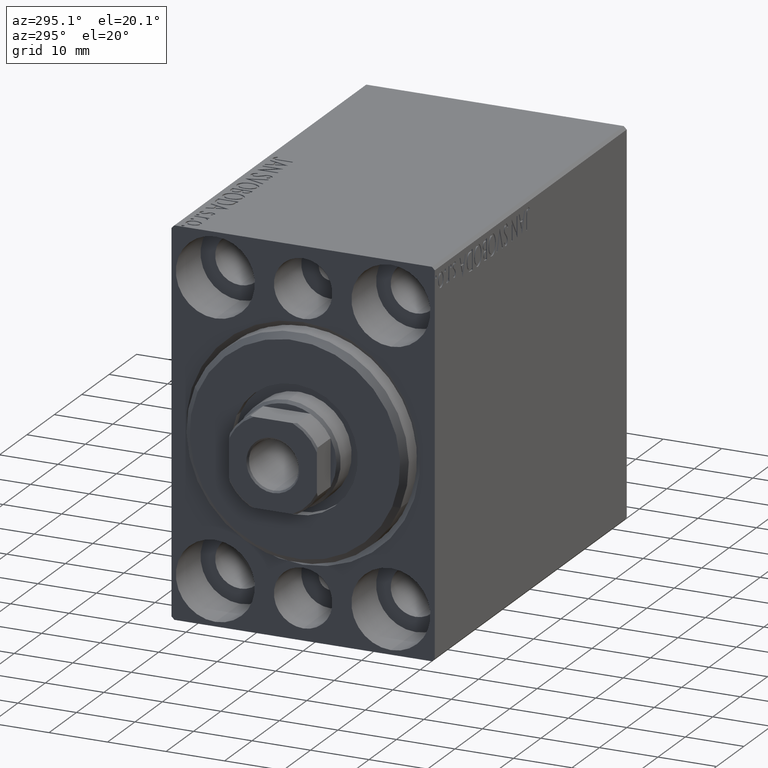
[diagram: clean part render]
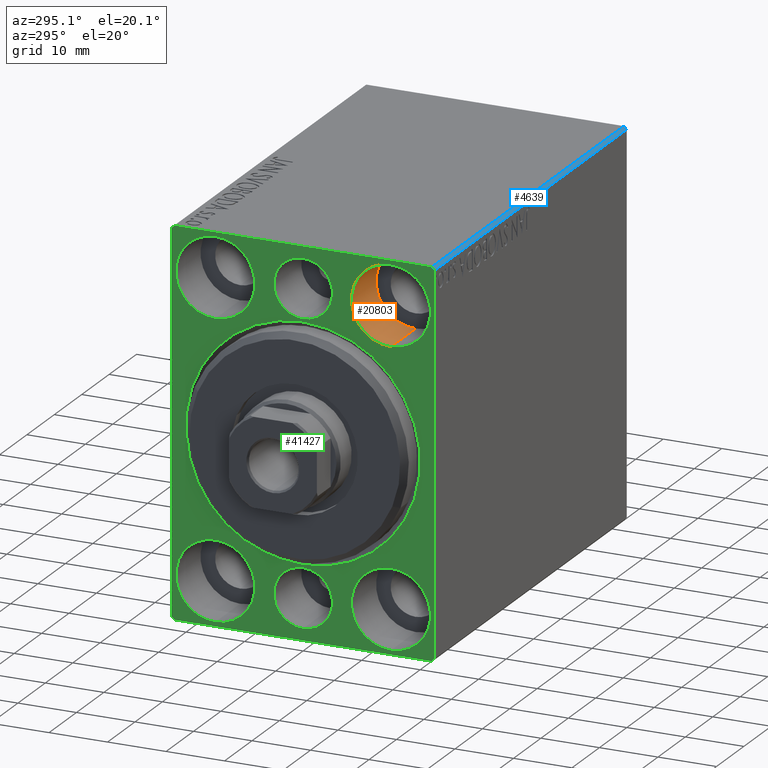
[diagram: same view with three faces highlighted in distinct colors, each labeled with its STEP entity id]
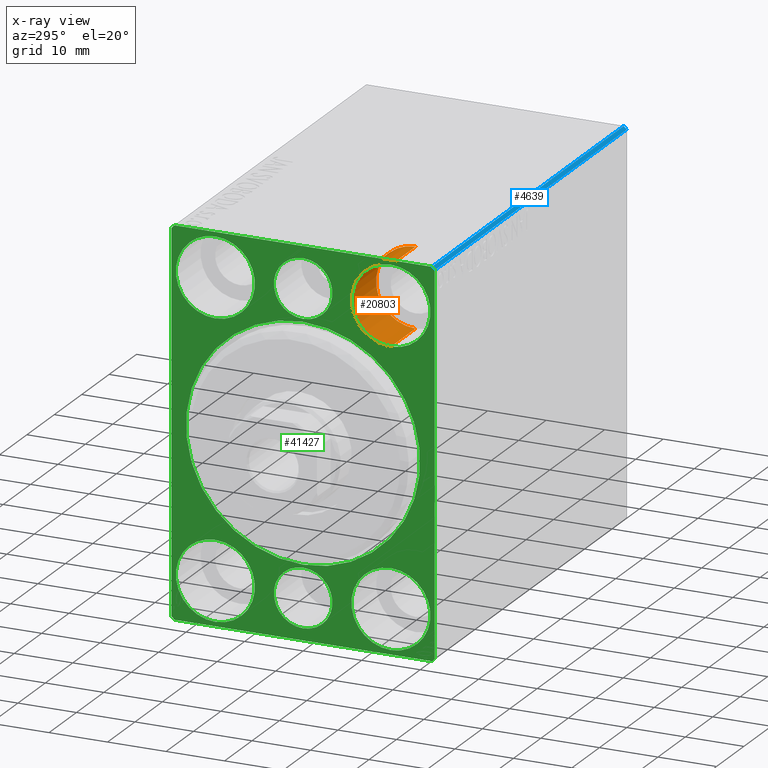
[diagram: x-ray of the same camera — body ghosted, the three highlighted faces saturated]
A machine part, auxiliary view with three faces highlighted in distinct colors.
The next image is the same camera in x-ray (body ghosted, the three faces saturated) — at least one of them is partly hidden behind the body in this view.
Their STEP definitions:

[orange] entity #20803 — the highlighted cylindrical surface (partial cylindrical patch) has radius 6.75 mm, axis along (-1, -0, -0).
#4675 = EDGE_CURVE ( 'NONE', #6647, #34797, #6281, .T. ) ;
#4719 = CARTESIAN_POINT ( 'NONE',  ( 9.000000000000000000, -14.99999999999999645, 25.00000000000000000 ) ) ;
#5056 = ORIENTED_EDGE ( 'NONE', *, *, #20488, .T. ) ;
#6268 = CARTESIAN_POINT ( 'NONE',  ( 0.000000000000000000, -14.99999999999999645, 31.75000000000000000 ) ) ;
#6281 = LINE ( 'NONE', #32587, #16364 ) ;
#6647 = VERTEX_POINT ( 'NONE', #42208 ) ;
#11013 = CIRCLE ( 'NONE', #38542, 6.749999999999999112 ) ;
#13075 = DIRECTION ( 'NONE',  ( -1.000000000000000000, -0.000000000000000000, -0.000000000000000000 ) ) ;
#14286 = ORIENTED_EDGE ( 'NONE', *, *, #26441, .F. ) ;
#15300 = VERTEX_POINT ( 'NONE', #6268 ) ;
#16068 = AXIS2_PLACEMENT_3D ( 'NONE', #36674, #43746, #26949 ) ;
#16216 = DIRECTION ( 'NONE',  ( -1.000000000000000000, -0.000000000000000000, -0.000000000000000000 ) ) ;
#16364 = VECTOR ( 'NONE', #16216, 1000.000000000000000 ) ;
#16936 = ORIENTED_EDGE ( 'NONE', *, *, #19176, .T. ) ;
#18856 = VERTEX_POINT ( 'NONE', #27780 ) ;
#19176 = EDGE_CURVE ( 'NONE', #18856, #15300, #43365, .T. ) ;
#20091 = DIRECTION ( 'NONE',  ( 0.000000000000000000, 0.000000000000000000, 1.000000000000000000 ) ) ;
#20488 = EDGE_CURVE ( 'NONE', #15300, #34797, #11013, .T. ) ;
#20803 = ADVANCED_FACE ( 'NONE', ( #31458 ), #37885, .F. ) ;
#22979 = VECTOR ( 'NONE', #13075, 1000.000000000000000 ) ;
#23417 = CARTESIAN_POINT ( 'NONE',  ( 0.000000000000000000, -14.99999999999999645, 25.00000000000000000 ) ) ;
#24827 = DIRECTION ( 'NONE',  ( -1.000000000000000000, -0.000000000000000000, -0.000000000000000000 ) ) ;
#26441 = EDGE_CURVE ( 'NONE', #18856, #6647, #35118, .T. ) ;
#26949 = DIRECTION ( 'NONE',  ( 0.000000000000000000, 0.000000000000000000, 1.000000000000000000 ) ) ;
#27780 = CARTESIAN_POINT ( 'NONE',  ( 9.000000000000000000, -14.99999999999999645, 31.75000000000000000 ) ) ;
#28800 = CARTESIAN_POINT ( 'NONE',  ( 0.000000000000000000, -14.99999999999999645, 18.25000000000000355 ) ) ;
#30225 = ORIENTED_EDGE ( 'NONE', *, *, #4675, .F. ) ;
#30257 = DIRECTION ( 'NONE',  ( -1.000000000000000000, 0.000000000000000000, 0.000000000000000000 ) ) ;
#30774 = AXIS2_PLACEMENT_3D ( 'NONE', #4719, #24827, #31674 ) ;
#31458 = FACE_OUTER_BOUND ( 'NONE', #38393, .T. ) ;
#31674 = DIRECTION ( 'NONE',  ( 0.000000000000000000, 0.000000000000000000, 1.000000000000000000 ) ) ;
#32587 = CARTESIAN_POINT ( 'NONE',  ( 9.000000000000000000, -14.99999999999999645, 18.25000000000000355 ) ) ;
#34797 = VERTEX_POINT ( 'NONE', #28800 ) ;
#35118 = CIRCLE ( 'NONE', #16068, 6.749999999999999112 ) ;
#36674 = CARTESIAN_POINT ( 'NONE',  ( 9.000000000000000000, -14.99999999999999645, 25.00000000000000000 ) ) ;
#37885 = CYLINDRICAL_SURFACE ( 'NONE', #30774, 6.749999999999999112 ) ;
#37982 = CARTESIAN_POINT ( 'NONE',  ( 9.000000000000000000, -14.99999999999999645, 31.75000000000000000 ) ) ;
#38393 = EDGE_LOOP ( 'NONE', ( #30225, #14286, #16936, #5056 ) ) ;
#38542 = AXIS2_PLACEMENT_3D ( 'NONE', #23417, #30257, #20091 ) ;
#42208 = CARTESIAN_POINT ( 'NONE',  ( 9.000000000000000000, -14.99999999999999645, 18.25000000000000355 ) ) ;
#43365 = LINE ( 'NONE', #37982, #22979 ) ;
#43746 = DIRECTION ( 'NONE',  ( -1.000000000000000000, 0.000000000000000000, 0.000000000000000000 ) ) ;

[blue] entity #4639 — the highlighted planar face has unit normal (0, 0.7071, -0.7071).
#155 = ORIENTED_EDGE ( 'NONE', *, *, #7684, .F. ) ;
#4639 = ADVANCED_FACE ( 'NONE', ( #22852 ), #32366, .F. ) ;
#4815 = CARTESIAN_POINT ( 'NONE',  ( 70.00000000000000000, -27.25000000000000000, 27.25000000000000000 ) ) ;
#7684 = EDGE_CURVE ( 'NONE', #14714, #11702, #21700, .T. ) ;
#7931 = AXIS2_PLACEMENT_3D ( 'NONE', #39226, #23069, #36334 ) ;
#10934 = EDGE_CURVE ( 'NONE', #43691, #21372, #25798, .T. ) ;
#11560 = CARTESIAN_POINT ( 'NONE',  ( 70.00000000000000000, -22.50000000000000711, 31.99999999999999289 ) ) ;
#11702 = VERTEX_POINT ( 'NONE', #42415 ) ;
#14313 = ORIENTED_EDGE ( 'NONE', *, *, #19226, .F. ) ;
#14714 = VERTEX_POINT ( 'NONE', #28537 ) ;
#15732 = DIRECTION ( 'NONE',  ( -1.000000000000000000, 0.000000000000000000, 0.000000000000000000 ) ) ;
#18281 = DIRECTION ( 'NONE',  ( 1.000000000000000000, 0.000000000000000000, 0.000000000000000000 ) ) ;
#19226 = EDGE_CURVE ( 'NONE', #21372, #14714, #31773, .T. ) ;
#19255 = DIRECTION ( 'NONE',  ( -0.000000000000000000, 0.7071067811865474617, 0.7071067811865474617 ) ) ;
#21372 = VERTEX_POINT ( 'NONE', #29173 ) ;
#21700 = LINE ( 'NONE', #11560, #36208 ) ;
#21817 = DIRECTION ( 'NONE',  ( 0.000000000000000000, -0.7071067811865474617, -0.7071067811865474617 ) ) ;
#22083 = EDGE_CURVE ( 'NONE', #11702, #43691, #42275, .T. ) ;
#22852 = FACE_OUTER_BOUND ( 'NONE', #24521, .T. ) ;
#23069 = DIRECTION ( 'NONE',  ( 0.000000000000000000, 0.7071067811865475727, -0.7071067811865475727 ) ) ;
#24521 = EDGE_LOOP ( 'NONE', ( #14313, #34255, #38284, #155 ) ) ;
#25798 = LINE ( 'NONE', #28456, #39121 ) ;
#27288 = VECTOR ( 'NONE', #19255, 1000.000000000000114 ) ;
#28456 = CARTESIAN_POINT ( 'NONE',  ( 70.00000000000000000, -22.00000000000000711, 32.49999999999999289 ) ) ;
#28537 = CARTESIAN_POINT ( 'NONE',  ( 70.00000000000000000, -22.50000000000000711, 31.99999999999999289 ) ) ;
#29173 = CARTESIAN_POINT ( 'NONE',  ( 70.00000000000000000, -21.99999999999999289, 32.49999999999999289 ) ) ;
#31773 = LINE ( 'NONE', #4815, #32164 ) ;
#32164 = VECTOR ( 'NONE', #21817, 1000.000000000000114 ) ;
#32366 = PLANE ( 'NONE',  #7931 ) ;
#32745 = CARTESIAN_POINT ( 'NONE',  ( 0.000000000000000000, -22.50000000000000711, 31.99999999999999289 ) ) ;
#34255 = ORIENTED_EDGE ( 'NONE', *, *, #10934, .F. ) ;
#36208 = VECTOR ( 'NONE', #15732, 1000.000000000000000 ) ;
#36334 = DIRECTION ( 'NONE',  ( -1.000000000000000000, 0.000000000000000000, 0.000000000000000000 ) ) ;
#36977 = CARTESIAN_POINT ( 'NONE',  ( 0.000000000000000000, -21.99999999999999289, 32.49999999999999289 ) ) ;
#38284 = ORIENTED_EDGE ( 'NONE', *, *, #22083, .F. ) ;
#39121 = VECTOR ( 'NONE', #18281, 1000.000000000000000 ) ;
#39226 = CARTESIAN_POINT ( 'NONE',  ( 70.00000000000000000, -22.50000000000000711, 31.99999999999999289 ) ) ;
#42275 = LINE ( 'NONE', #32745, #27288 ) ;
#42415 = CARTESIAN_POINT ( 'NONE',  ( 0.000000000000000000, -22.50000000000000711, 31.99999999999999289 ) ) ;
#43691 = VERTEX_POINT ( 'NONE', #36977 ) ;

[green] entity #41427 — the highlighted planar face has unit normal (1, 0, 0).
#56 = ORIENTED_EDGE ( 'NONE', *, *, #23486, .F. ) ;
#568 = CARTESIAN_POINT ( 'NONE',  ( 0.000000000000000000, 22.50000000000000000, -32.00000000000002132 ) ) ;
#1367 = CARTESIAN_POINT ( 'NONE',  ( 0.000000000000000000, -22.00000000000002132, -32.50000000000000711 ) ) ;
#1720 = VERTEX_POINT ( 'NONE', #37366 ) ;
#1728 = VERTEX_POINT ( 'NONE', #30718 ) ;
#2123 = PLANE ( 'NONE',  #6443 ) ;
#2344 = FACE_OUTER_BOUND ( 'NONE', #13834, .T. ) ;
#2418 = CARTESIAN_POINT ( 'NONE',  ( 0.000000000000000000, -22.50000000000000711, -32.00000000000000711 ) ) ;
#2734 = DIRECTION ( 'NONE',  ( 0.000000000000000000, 0.000000000000000000, 1.000000000000000000 ) ) ;
#3090 = EDGE_CURVE ( 'NONE', #10827, #22462, #41779, .T. ) ;
#3198 = CARTESIAN_POINT ( 'NONE',  ( 0.000000000000000000, -22.50000000000000711, 32.49999999999999289 ) ) ;
#3340 = DIRECTION ( 'NONE',  ( -1.000000000000000000, 0.000000000000000000, 0.000000000000000000 ) ) ;
#3543 = AXIS2_PLACEMENT_3D ( 'NONE', #39086, #8806, #18298 ) ;
#3627 = VERTEX_POINT ( 'NONE', #28598 ) ;
#3954 = CARTESIAN_POINT ( 'NONE',  ( 0.000000000000000000, 0.000000000000000000, 20.00000000000000355 ) ) ;
#4105 = CARTESIAN_POINT ( 'NONE',  ( 0.000000000000000000, -15.00000000000000355, -25.00000000000000000 ) ) ;
#4132 = DIRECTION ( 'NONE',  ( -1.000000000000000000, 0.000000000000000000, 0.000000000000000000 ) ) ;
#4180 = ORIENTED_EDGE ( 'NONE', *, *, #7782, .T. ) ;
#4498 = DIRECTION ( 'NONE',  ( 0.000000000000000000, 0.000000000000000000, 1.000000000000000000 ) ) ;
#4662 = VECTOR ( 'NONE', #36736, 1000.000000000000000 ) ;
#4912 = VERTEX_POINT ( 'NONE', #34544 ) ;
#4921 = DIRECTION ( 'NONE',  ( -0.000000000000000000, -0.7071067811865378028, 0.7071067811865573427 ) ) ;
#4953 = AXIS2_PLACEMENT_3D ( 'NONE', #8755, #14951, #11424 ) ;
#5235 = FACE_BOUND ( 'NONE', #34938, .T. ) ;
#5315 = VECTOR ( 'NONE', #7758, 1000.000000000000000 ) ;
#5453 = CARTESIAN_POINT ( 'NONE',  ( 0.000000000000000000, 0.000000000000000000, -25.50000000000000000 ) ) ;
#5612 = CARTESIAN_POINT ( 'NONE',  ( 0.000000000000000000, -22.00000000000002132, -32.50000000000000711 ) ) ;
#5863 = CIRCLE ( 'NONE', #31258, 5.000000000000000888 ) ;
#6268 = CARTESIAN_POINT ( 'NONE',  ( 0.000000000000000000, -14.99999999999999645, 31.75000000000000000 ) ) ;
#6443 = AXIS2_PLACEMENT_3D ( 'NONE', #29309, #32846, #22238 ) ;
#7100 = EDGE_CURVE ( 'NONE', #3627, #1728, #5863, .T. ) ;
#7649 = DIRECTION ( 'NONE',  ( 0.000000000000000000, 0.000000000000000000, -1.000000000000000000 ) ) ;
#7758 = DIRECTION ( 'NONE',  ( 0.000000000000000000, -1.000000000000000000, -1.541976423090495387E-16 ) ) ;
#7782 = EDGE_CURVE ( 'NONE', #30345, #9735, #9985, .T. ) ;
#8210 = DIRECTION ( 'NONE',  ( 0.000000000000000000, 0.000000000000000000, 1.000000000000000000 ) ) ;
#8287 = CIRCLE ( 'NONE', #15356, 5.000000000000000888 ) ;
#8755 = CARTESIAN_POINT ( 'NONE',  ( 0.000000000000000000, 0.000000000000000000, 0.000000000000000000 ) ) ;
#8806 = DIRECTION ( 'NONE',  ( -1.000000000000000000, 0.000000000000000000, 0.000000000000000000 ) ) ;
#8958 = CIRCLE ( 'NONE', #33645, 6.749999999999999112 ) ;
#9305 = AXIS2_PLACEMENT_3D ( 'NONE', #16320, #40206, #9925 ) ;
#9309 = VECTOR ( 'NONE', #4921, 1000.000000000000000 ) ;
#9562 = EDGE_CURVE ( 'NONE', #34797, #15300, #27800, .T. ) ;
#9638 = ORIENTED_EDGE ( 'NONE', *, *, #38014, .F. ) ;
#9682 = ORIENTED_EDGE ( 'NONE', *, *, #23338, .T. ) ;
#9735 = VERTEX_POINT ( 'NONE', #28282 ) ;
#9910 = ORIENTED_EDGE ( 'NONE', *, *, #26015, .F. ) ;
#9925 = DIRECTION ( 'NONE',  ( 0.000000000000000000, 0.000000000000000000, 1.000000000000000000 ) ) ;
#9985 = LINE ( 'NONE', #16161, #11523 ) ;
#10125 = CARTESIAN_POINT ( 'NONE',  ( 0.000000000000000000, 15.00000000000000355, 25.00000000000000000 ) ) ;
#10534 = CIRCLE ( 'NONE', #26741, 6.749999999999999112 ) ;
#10535 = DIRECTION ( 'NONE',  ( 1.000000000000000000, 0.000000000000000000, 0.000000000000000000 ) ) ;
#10827 = VERTEX_POINT ( 'NONE', #20083 ) ;
#11013 = CIRCLE ( 'NONE', #38542, 6.749999999999999112 ) ;
#11068 = LINE ( 'NONE', #21213, #5315 ) ;
#11340 = ORIENTED_EDGE ( 'NONE', *, *, #3090, .F. ) ;
#11396 = CARTESIAN_POINT ( 'NONE',  ( 0.000000000000000000, 0.000000000000000000, 0.000000000000000000 ) ) ;
#11419 = VERTEX_POINT ( 'NONE', #14939 ) ;
#11424 = DIRECTION ( 'NONE',  ( 0.000000000000000000, 0.000000000000000000, -1.000000000000000000 ) ) ;
#11477 = EDGE_CURVE ( 'NONE', #11702, #18527, #40113, .T. ) ;
#11523 = VECTOR ( 'NONE', #23460, 1000.000000000000114 ) ;
#11702 = VERTEX_POINT ( 'NONE', #42415 ) ;
#11865 = CARTESIAN_POINT ( 'NONE',  ( 0.000000000000000000, 21.99999999999999289, 32.50000000000000000 ) ) ;
#11875 = FACE_BOUND ( 'NONE', #26652, .T. ) ;
#12313 = CARTESIAN_POINT ( 'NONE',  ( 0.000000000000000000, 2.449293598294706907E-15, -20.00000000000000355 ) ) ;
#13507 = EDGE_CURVE ( 'NONE', #13991, #43691, #11068, .T. ) ;
#13834 = EDGE_LOOP ( 'NONE', ( #26848, #25592, #19575, #32358, #17343, #4180, #41538, #21272 ) ) ;
#13991 = VERTEX_POINT ( 'NONE', #11865 ) ;
#14123 = AXIS2_PLACEMENT_3D ( 'NONE', #25355, #38416, #31558 ) ;
#14263 = EDGE_LOOP ( 'NONE', ( #56, #9638 ) ) ;
#14659 = AXIS2_PLACEMENT_3D ( 'NONE', #4105, #37924, #34816 ) ;
#14939 = CARTESIAN_POINT ( 'NONE',  ( 0.000000000000000000, 0.000000000000000000, 30.50000000000000000 ) ) ;
#14951 = DIRECTION ( 'NONE',  ( 1.000000000000000000, 0.000000000000000000, 0.000000000000000000 ) ) ;
#15216 = VERTEX_POINT ( 'NONE', #5612 ) ;
#15300 = VERTEX_POINT ( 'NONE', #6268 ) ;
#15356 = AXIS2_PLACEMENT_3D ( 'NONE', #21285, #34773, #4498 ) ;
#16054 = FACE_BOUND ( 'NONE', #19364, .T. ) ;
#16161 = CARTESIAN_POINT ( 'NONE',  ( 0.000000000000000000, 22.50000000000000000, -32.00000000000002132 ) ) ;
#16320 = CARTESIAN_POINT ( 'NONE',  ( 0.000000000000000000, 14.99999999999999645, -25.00000000000000000 ) ) ;
#16508 = CARTESIAN_POINT ( 'NONE',  ( 0.000000000000000000, 6.123233995736765296E-16, 20.49999999999999645 ) ) ;
#16673 = DIRECTION ( 'NONE',  ( 0.000000000000000000, 0.000000000000000000, -1.000000000000000000 ) ) ;
#16880 = CARTESIAN_POINT ( 'NONE',  ( 0.000000000000000000, 15.00000000000000355, 25.00000000000000000 ) ) ;
#17343 = ORIENTED_EDGE ( 'NONE', *, *, #20092, .F. ) ;
#17898 = CARTESIAN_POINT ( 'NONE',  ( 0.000000000000000000, 0.000000000000000000, -25.50000000000000000 ) ) ;
#17987 = ORIENTED_EDGE ( 'NONE', *, *, #36249, .F. ) ;
#18298 = DIRECTION ( 'NONE',  ( 0.000000000000000000, 0.000000000000000000, 1.000000000000000000 ) ) ;
#18381 = EDGE_CURVE ( 'NONE', #13991, #39263, #37833, .T. ) ;
#18398 = ORIENTED_EDGE ( 'NONE', *, *, #24496, .F. ) ;
#18447 = VECTOR ( 'NONE', #39598, 1000.000000000000000 ) ;
#18527 = VERTEX_POINT ( 'NONE', #2418 ) ;
#18698 = ORIENTED_EDGE ( 'NONE', *, *, #33375, .F. ) ;
#18880 = ORIENTED_EDGE ( 'NONE', *, *, #9562, .F. ) ;
#18925 = DIRECTION ( 'NONE',  ( -1.000000000000000000, 0.000000000000000000, 0.000000000000000000 ) ) ;
#19255 = DIRECTION ( 'NONE',  ( -0.000000000000000000, 0.7071067811865474617, 0.7071067811865474617 ) ) ;
#19364 = EDGE_LOOP ( 'NONE', ( #29132, #18398 ) ) ;
#19575 = ORIENTED_EDGE ( 'NONE', *, *, #13507, .F. ) ;
#19614 = ORIENTED_EDGE ( 'NONE', *, *, #29717, .F. ) ;
#19970 = DIRECTION ( 'NONE',  ( -1.000000000000000000, 0.000000000000000000, 0.000000000000000000 ) ) ;
#20083 = CARTESIAN_POINT ( 'NONE',  ( 0.000000000000000000, 14.99999999999999645, -31.75000000000000000 ) ) ;
#20091 = DIRECTION ( 'NONE',  ( 0.000000000000000000, 0.000000000000000000, 1.000000000000000000 ) ) ;
#20092 = EDGE_CURVE ( 'NONE', #30345, #39263, #23473, .T. ) ;
#20450 = CIRCLE ( 'NONE', #14123, 5.000000000000000888 ) ;
#20488 = EDGE_CURVE ( 'NONE', #15300, #34797, #11013, .T. ) ;
#21173 = CIRCLE ( 'NONE', #3543, 6.749999999999999112 ) ;
#21213 = CARTESIAN_POINT ( 'NONE',  ( 0.000000000000000000, 22.49999999999999289, 32.50000000000000000 ) ) ;
#21272 = ORIENTED_EDGE ( 'NONE', *, *, #42779, .T. ) ;
#21285 = CARTESIAN_POINT ( 'NONE',  ( 0.000000000000000000, 0.000000000000000000, 25.50000000000000000 ) ) ;
#22083 = EDGE_CURVE ( 'NONE', #11702, #43691, #42275, .T. ) ;
#22191 = VECTOR ( 'NONE', #16673, 1000.000000000000000 ) ;
#22238 = DIRECTION ( 'NONE',  ( 0.000000000000000000, 0.000000000000000000, -1.000000000000000000 ) ) ;
#22462 = VERTEX_POINT ( 'NONE', #38561 ) ;
#22545 = CIRCLE ( 'NONE', #35969, 5.000000000000000888 ) ;
#23337 = EDGE_LOOP ( 'NONE', ( #18698, #11340 ) ) ;
#23338 = EDGE_CURVE ( 'NONE', #42980, #41462, #25186, .T. ) ;
#23417 = CARTESIAN_POINT ( 'NONE',  ( 0.000000000000000000, -14.99999999999999645, 25.00000000000000000 ) ) ;
#23460 = DIRECTION ( 'NONE',  ( 0.000000000000000000, -0.7071067811865376918, -0.7071067811865573427 ) ) ;
#23473 = LINE ( 'NONE', #36512, #4662 ) ;
#23486 = EDGE_CURVE ( 'NONE', #25348, #1720, #8958, .T. ) ;
#24028 = CIRCLE ( 'NONE', #29648, 6.749999999999999112 ) ;
#24496 = EDGE_CURVE ( 'NONE', #43240, #11419, #8287, .T. ) ;
#25000 = CARTESIAN_POINT ( 'NONE',  ( 0.000000000000000000, -15.00000000000000355, -25.00000000000000000 ) ) ;
#25186 = CIRCLE ( 'NONE', #42847, 20.00000000000000355 ) ;
#25343 = FACE_BOUND ( 'NONE', #37051, .T. ) ;
#25348 = VERTEX_POINT ( 'NONE', #25443 ) ;
#25355 = CARTESIAN_POINT ( 'NONE',  ( 0.000000000000000000, 0.000000000000000000, 25.50000000000000000 ) ) ;
#25443 = CARTESIAN_POINT ( 'NONE',  ( 0.000000000000000000, 15.00000000000000355, 31.75000000000000000 ) ) ;
#25592 = ORIENTED_EDGE ( 'NONE', *, *, #22083, .T. ) ;
#25893 = LINE ( 'NONE', #40266, #18447 ) ;
#25997 = FACE_BOUND ( 'NONE', #23337, .T. ) ;
#26015 = EDGE_CURVE ( 'NONE', #4912, #27804, #28059, .T. ) ;
#26652 = EDGE_LOOP ( 'NONE', ( #9682, #41827 ) ) ;
#26741 = AXIS2_PLACEMENT_3D ( 'NONE', #25000, #38492, #8210 ) ;
#26848 = ORIENTED_EDGE ( 'NONE', *, *, #11477, .F. ) ;
#27288 = VECTOR ( 'NONE', #19255, 1000.000000000000114 ) ;
#27800 = CIRCLE ( 'NONE', #35575, 6.749999999999999112 ) ;
#27804 = VERTEX_POINT ( 'NONE', #33583 ) ;
#28059 = CIRCLE ( 'NONE', #14659, 6.749999999999999112 ) ;
#28282 = CARTESIAN_POINT ( 'NONE',  ( 0.000000000000000000, 22.00000000000001421, -32.50000000000000711 ) ) ;
#28598 = CARTESIAN_POINT ( 'NONE',  ( 0.000000000000000000, 0.000000000000000000, -20.49999999999999645 ) ) ;
#28800 = CARTESIAN_POINT ( 'NONE',  ( 0.000000000000000000, -14.99999999999999645, 18.25000000000000355 ) ) ;
#29132 = ORIENTED_EDGE ( 'NONE', *, *, #32554, .F. ) ;
#29309 = CARTESIAN_POINT ( 'NONE',  ( 0.000000000000000000, 0.000000000000000000, 0.000000000000000000 ) ) ;
#29648 = AXIS2_PLACEMENT_3D ( 'NONE', #10125, #4132, #30877 ) ;
#29717 = EDGE_CURVE ( 'NONE', #27804, #4912, #10534, .T. ) ;
#30150 = CARTESIAN_POINT ( 'NONE',  ( 0.000000000000000000, 21.99999999999999289, 32.50000000000000000 ) ) ;
#30257 = DIRECTION ( 'NONE',  ( -1.000000000000000000, 0.000000000000000000, 0.000000000000000000 ) ) ;
#30345 = VERTEX_POINT ( 'NONE', #568 ) ;
#30718 = CARTESIAN_POINT ( 'NONE',  ( 0.000000000000000000, 6.123233995736765296E-16, -30.50000000000000000 ) ) ;
#30737 = DIRECTION ( 'NONE',  ( -1.000000000000000000, 0.000000000000000000, 0.000000000000000000 ) ) ;
#30877 = DIRECTION ( 'NONE',  ( 0.000000000000000000, 0.000000000000000000, 1.000000000000000000 ) ) ;
#31102 = ORIENTED_EDGE ( 'NONE', *, *, #7100, .F. ) ;
#31258 = AXIS2_PLACEMENT_3D ( 'NONE', #5453, #18925, #36384 ) ;
#31558 = DIRECTION ( 'NONE',  ( 0.000000000000000000, 0.000000000000000000, 1.000000000000000000 ) ) ;
#31661 = LINE ( 'NONE', #1367, #9309 ) ;
#32346 = ORIENTED_EDGE ( 'NONE', *, *, #20488, .F. ) ;
#32358 = ORIENTED_EDGE ( 'NONE', *, *, #18381, .T. ) ;
#32554 = EDGE_CURVE ( 'NONE', #11419, #43240, #20450, .T. ) ;
#32639 = FACE_BOUND ( 'NONE', #14263, .T. ) ;
#32745 = CARTESIAN_POINT ( 'NONE',  ( 0.000000000000000000, -22.50000000000000711, 31.99999999999999289 ) ) ;
#32846 = DIRECTION ( 'NONE',  ( 1.000000000000000000, 0.000000000000000000, 0.000000000000000000 ) ) ;
#33375 = EDGE_CURVE ( 'NONE', #22462, #10827, #21173, .T. ) ;
#33583 = CARTESIAN_POINT ( 'NONE',  ( 0.000000000000000000, -15.00000000000000355, -31.75000000000000000 ) ) ;
#33645 = AXIS2_PLACEMENT_3D ( 'NONE', #16880, #19970, #2734 ) ;
#34344 = VECTOR ( 'NONE', #38260, 999.9999999999998863 ) ;
#34544 = CARTESIAN_POINT ( 'NONE',  ( 0.000000000000000000, -15.00000000000000355, -18.25000000000000355 ) ) ;
#34773 = DIRECTION ( 'NONE',  ( -1.000000000000000000, 0.000000000000000000, 0.000000000000000000 ) ) ;
#34797 = VERTEX_POINT ( 'NONE', #28800 ) ;
#34816 = DIRECTION ( 'NONE',  ( 0.000000000000000000, 0.000000000000000000, 1.000000000000000000 ) ) ;
#34938 = EDGE_LOOP ( 'NONE', ( #31102, #17987 ) ) ;
#35575 = AXIS2_PLACEMENT_3D ( 'NONE', #40036, #3340, #36719 ) ;
#35969 = AXIS2_PLACEMENT_3D ( 'NONE', #17898, #30737, #37601 ) ;
#36249 = EDGE_CURVE ( 'NONE', #1728, #3627, #22545, .T. ) ;
#36384 = DIRECTION ( 'NONE',  ( 0.000000000000000000, 0.000000000000000000, 1.000000000000000000 ) ) ;
#36512 = CARTESIAN_POINT ( 'NONE',  ( 0.000000000000000000, 22.50000000000000000, -32.50000000000000711 ) ) ;
#36719 = DIRECTION ( 'NONE',  ( 0.000000000000000000, 0.000000000000000000, 1.000000000000000000 ) ) ;
#36736 = DIRECTION ( 'NONE',  ( 0.000000000000000000, -1.067522139062650425E-16, 1.000000000000000000 ) ) ;
#36977 = CARTESIAN_POINT ( 'NONE',  ( 0.000000000000000000, -21.99999999999999289, 32.49999999999999289 ) ) ;
#37051 = EDGE_LOOP ( 'NONE', ( #32346, #18880 ) ) ;
#37366 = CARTESIAN_POINT ( 'NONE',  ( 0.000000000000000000, 15.00000000000000355, 18.25000000000000355 ) ) ;
#37438 = CIRCLE ( 'NONE', #4953, 20.00000000000000355 ) ;
#37601 = DIRECTION ( 'NONE',  ( 0.000000000000000000, 0.000000000000000000, 1.000000000000000000 ) ) ;
#37833 = LINE ( 'NONE', #30150, #34344 ) ;
#37924 = DIRECTION ( 'NONE',  ( -1.000000000000000000, 0.000000000000000000, 0.000000000000000000 ) ) ;
#38014 = EDGE_CURVE ( 'NONE', #1720, #25348, #24028, .T. ) ;
#38117 = EDGE_LOOP ( 'NONE', ( #9910, #19614 ) ) ;
#38160 = EDGE_CURVE ( 'NONE', #41462, #42980, #37438, .T. ) ;
#38260 = DIRECTION ( 'NONE',  ( -0.000000000000000000, 0.7071067811865425767, -0.7071067811865525687 ) ) ;
#38416 = DIRECTION ( 'NONE',  ( -1.000000000000000000, 0.000000000000000000, 0.000000000000000000 ) ) ;
#38492 = DIRECTION ( 'NONE',  ( -1.000000000000000000, 0.000000000000000000, 0.000000000000000000 ) ) ;
#38542 = AXIS2_PLACEMENT_3D ( 'NONE', #23417, #30257, #20091 ) ;
#38561 = CARTESIAN_POINT ( 'NONE',  ( 0.000000000000000000, 14.99999999999999645, -18.25000000000000355 ) ) ;
#39086 = CARTESIAN_POINT ( 'NONE',  ( 0.000000000000000000, 14.99999999999999645, -25.00000000000000000 ) ) ;
#39263 = VERTEX_POINT ( 'NONE', #42530 ) ;
#39598 = DIRECTION ( 'NONE',  ( 0.000000000000000000, 1.000000000000000000, 0.000000000000000000 ) ) ;
#40036 = CARTESIAN_POINT ( 'NONE',  ( 0.000000000000000000, -14.99999999999999645, 25.00000000000000000 ) ) ;
#40113 = LINE ( 'NONE', #3198, #22191 ) ;
#40206 = DIRECTION ( 'NONE',  ( -1.000000000000000000, 0.000000000000000000, 0.000000000000000000 ) ) ;
#40266 = CARTESIAN_POINT ( 'NONE',  ( 0.000000000000000000, -22.50000000000000711, -32.50000000000000711 ) ) ;
#41427 = ADVANCED_FACE ( 'NONE', ( #5235, #16054, #11875, #25997, #25343, #32639, #42160, #2344 ), #2123, .F. ) ;
#41462 = VERTEX_POINT ( 'NONE', #12313 ) ;
#41538 = ORIENTED_EDGE ( 'NONE', *, *, #41752, .F. ) ;
#41752 = EDGE_CURVE ( 'NONE', #15216, #9735, #25893, .T. ) ;
#41779 = CIRCLE ( 'NONE', #9305, 6.749999999999999112 ) ;
#41827 = ORIENTED_EDGE ( 'NONE', *, *, #38160, .T. ) ;
#42160 = FACE_BOUND ( 'NONE', #38117, .T. ) ;
#42275 = LINE ( 'NONE', #32745, #27288 ) ;
#42415 = CARTESIAN_POINT ( 'NONE',  ( 0.000000000000000000, -22.50000000000000711, 31.99999999999999289 ) ) ;
#42530 = CARTESIAN_POINT ( 'NONE',  ( 0.000000000000000000, 22.49999999999999289, 31.99999999999999289 ) ) ;
#42779 = EDGE_CURVE ( 'NONE', #15216, #18527, #31661, .T. ) ;
#42847 = AXIS2_PLACEMENT_3D ( 'NONE', #11396, #10535, #7649 ) ;
#42980 = VERTEX_POINT ( 'NONE', #3954 ) ;
#43240 = VERTEX_POINT ( 'NONE', #16508 ) ;
#43691 = VERTEX_POINT ( 'NONE', #36977 ) ;